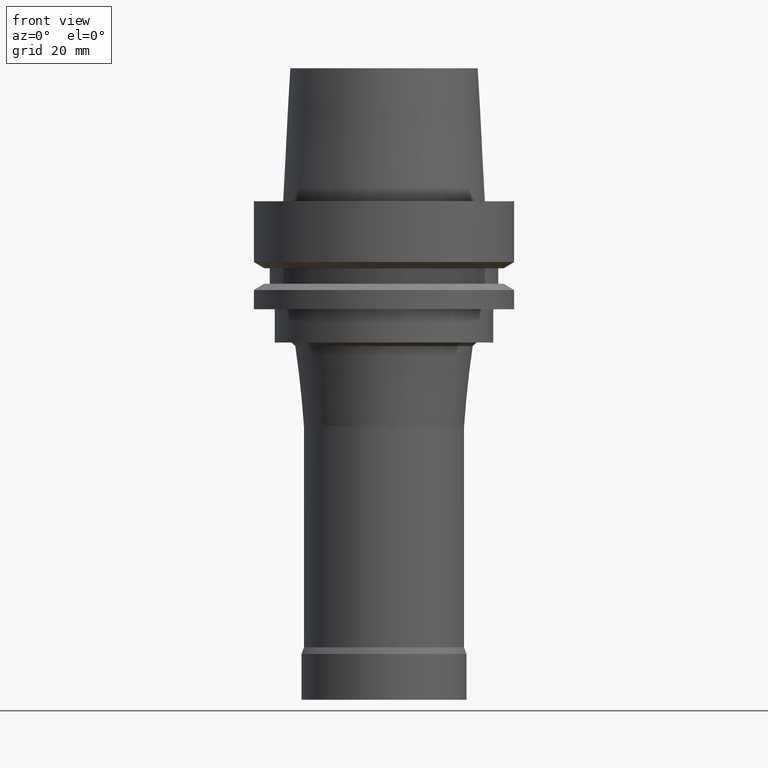
[diagram: clean part render]
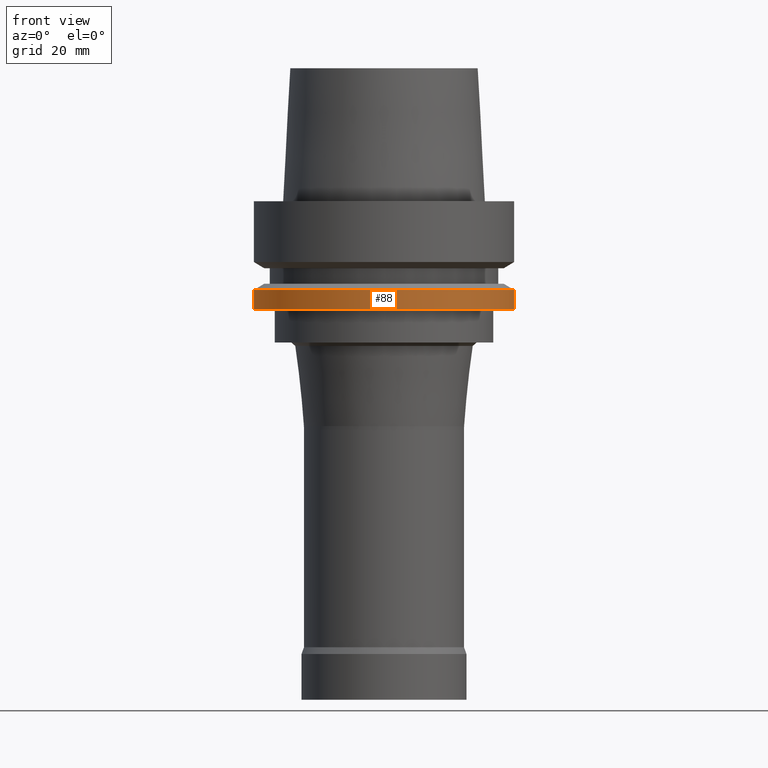
[diagram: same view with one face highlighted and labeled with its STEP entity id]
A machine part, front view. The second image highlights one B-rep face of the part: STEP entity #88.
In plain terms, the highlighted cylindrical surface (bore or boss wall) has radius 31.5 mm, axis along (-0, -0, 1).
Its self-contained STEP definition (entity closure, byte-faithful):
#88=ADVANCED_FACE('',(#134,#135),#136,.T.);
#134=FACE_BOUND('',#192,.T.);
#135=FACE_BOUND('',#193,.T.);
#136=CYLINDRICAL_SURFACE('',#194,31.5);
#192=EDGE_LOOP('',(#276));
#193=EDGE_LOOP('',(#277));
#194=AXIS2_PLACEMENT_3D('',#278,#279,#280);
#276=ORIENTED_EDGE('',*,*,#324,.F.);
#277=ORIENTED_EDGE('',*,*,#323,.T.);
#278=CARTESIAN_POINT('',(1.45051756469206E-015,2.90103512938411E-015,-23.688749535));
#279=DIRECTION('',(-6.12323399573677E-017,-1.22464679914735E-016,1.0));
#280=DIRECTION('',(-1.23259516440783E-032,1.0,1.22464679914735E-016));
#323=EDGE_CURVE('',#355,#355,#356,.T.);
#324=EDGE_CURVE('',#357,#357,#358,.T.);
#355=VERTEX_POINT('',#393);
#356=CIRCLE('',#394,31.5);
#357=VERTEX_POINT('',#395);
#358=CIRCLE('',#396,31.5);
#393=CARTESIAN_POINT('',(1.30899429049255E-015,31.5,-21.37749907));
#394=AXIS2_PLACEMENT_3D('',#444,#445,#446);
#395=CARTESIAN_POINT('',(1.59204083889156E-015,31.5,-26.0));
#396=AXIS2_PLACEMENT_3D('',#447,#448,#449);
#444=CARTESIAN_POINT('',(1.30899429049255E-015,2.6179885809851E-015,-21.37749907));
#445=DIRECTION('',(6.12323399573677E-017,1.22464679914735E-016,-1.0));
#446=DIRECTION('',(-1.23259516440783E-032,1.0,1.22464679914735E-016));
#447=CARTESIAN_POINT('',(1.59204083889156E-015,3.18408167778312E-015,-26.0));
#448=DIRECTION('',(6.12323399573677E-017,1.22464679914735E-016,-1.0));
#449=DIRECTION('',(-1.23259516440783E-032,1.0,1.22464679914735E-016));